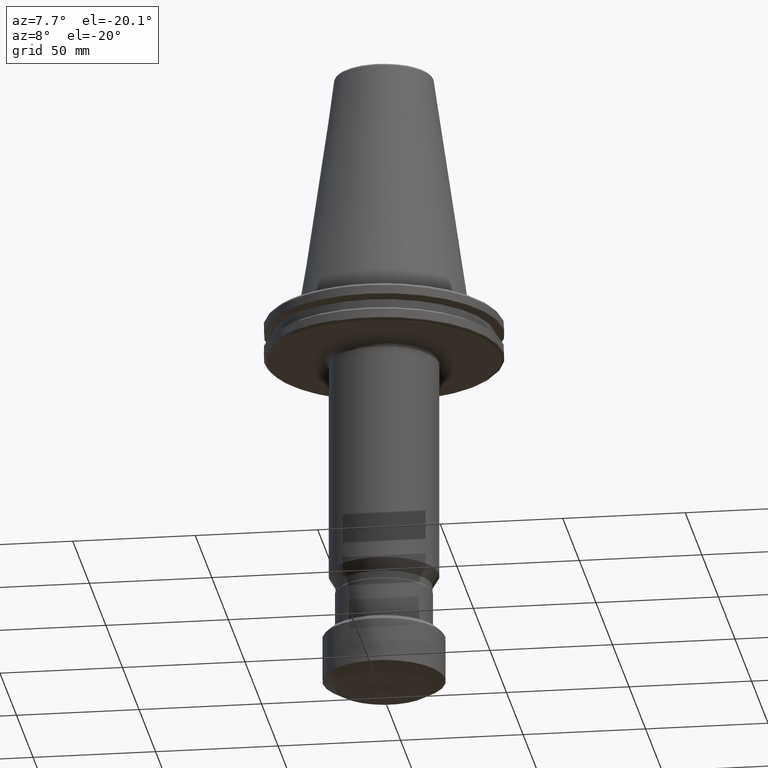
[diagram: clean part render]
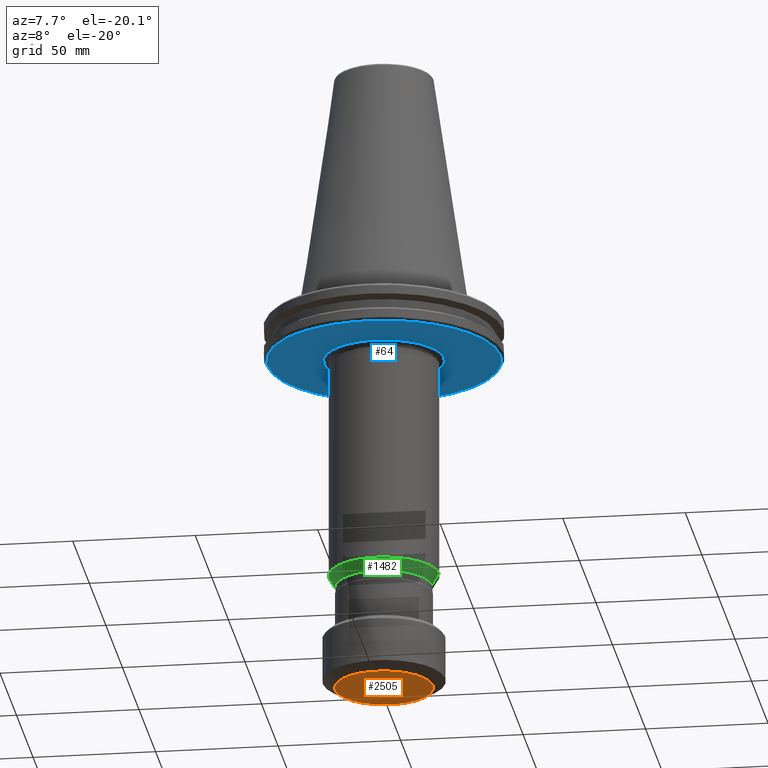
[diagram: same view with three faces highlighted in distinct colors, each labeled with its STEP entity id]
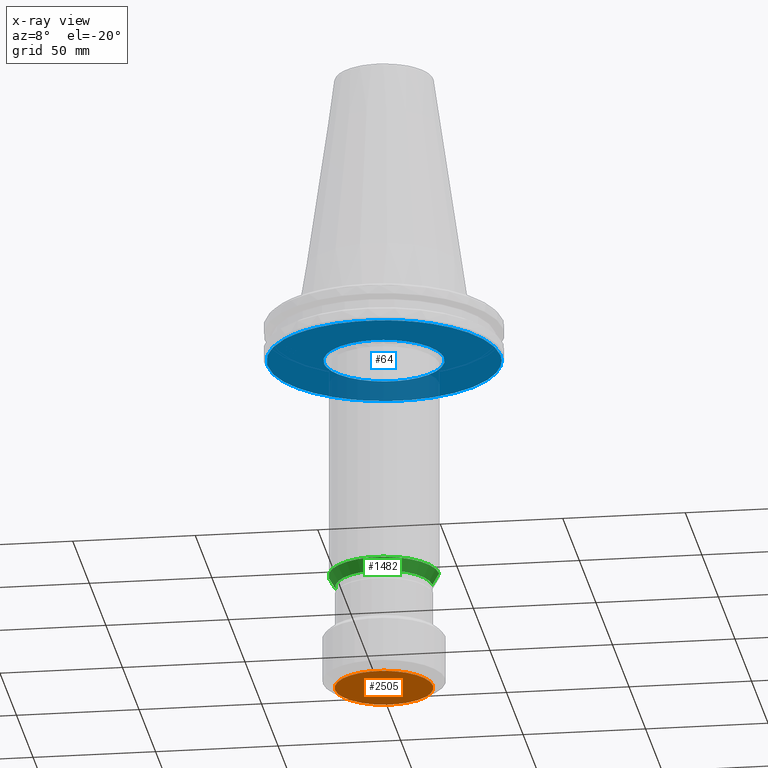
[diagram: x-ray of the same camera — body ghosted, the three highlighted faces saturated]
A machine part, auxiliary view with three faces highlighted in distinct colors.
The next image is the same camera in x-ray (body ghosted, the three faces saturated) — at least one of them is partly hidden behind the body in this view.
Their STEP definitions:

[orange] entity #2505 — the highlighted planar face has unit normal (0, 0, 1).
#380 = CARTESIAN_POINT ( 'NONE',  ( 0.0000000000000000000, 0.0000000000000000000, -160.0000000000000300 ) ) ;
#454 = EDGE_LOOP ( 'NONE', ( #2498, #1276 ) ) ;
#510 = DIRECTION ( 'NONE',  ( 0.0000000000000000000, -0.0000000000000000000, 1.000000000000000000 ) ) ;
#671 = DIRECTION ( 'NONE',  ( 1.000000000000000000, 0.0000000000000000000, 0.0000000000000000000 ) ) ;
#695 = CIRCLE ( 'NONE', #987, 20.00000000000000000 ) ;
#708 = CARTESIAN_POINT ( 'NONE',  ( 0.0000000000000000000, 0.0000000000000000000, -160.0000000000000300 ) ) ;
#764 = CIRCLE ( 'NONE', #2365, 20.00000000000000000 ) ;
#987 = AXIS2_PLACEMENT_3D ( 'NONE', #2160, #510, #2411 ) ;
#1003 = DIRECTION ( 'NONE',  ( 1.000000000000000000, 0.0000000000000000000, -0.0000000000000000000 ) ) ;
#1141 = VERTEX_POINT ( 'NONE', #2947 ) ;
#1276 = ORIENTED_EDGE ( 'NONE', *, *, #2257, .F. ) ;
#1395 = AXIS2_PLACEMENT_3D ( 'NONE', #708, #2581, #1003 ) ;
#1553 = PLANE ( 'NONE',  #1395 ) ;
#1664 = FACE_OUTER_BOUND ( 'NONE', #454, .T. ) ;
#1704 = VERTEX_POINT ( 'NONE', #2370 ) ;
#2160 = CARTESIAN_POINT ( 'NONE',  ( 0.0000000000000000000, 0.0000000000000000000, -160.0000000000000300 ) ) ;
#2257 = EDGE_CURVE ( 'NONE', #1141, #1704, #695, .T. ) ;
#2297 = DIRECTION ( 'NONE',  ( 0.0000000000000000000, -0.0000000000000000000, 1.000000000000000000 ) ) ;
#2365 = AXIS2_PLACEMENT_3D ( 'NONE', #380, #2297, #671 ) ;
#2370 = CARTESIAN_POINT ( 'NONE',  ( 20.00000000000000000, 0.0000000000000000000, -160.0000000000000300 ) ) ;
#2411 = DIRECTION ( 'NONE',  ( 1.000000000000000000, 0.0000000000000000000, 0.0000000000000000000 ) ) ;
#2498 = ORIENTED_EDGE ( 'NONE', *, *, #3369, .F. ) ;
#2505 = ADVANCED_FACE ( 'NONE', ( #1664 ), #1553, .F. ) ;
#2581 = DIRECTION ( 'NONE',  ( 0.0000000000000000000, 0.0000000000000000000, 1.000000000000000000 ) ) ;
#2947 = CARTESIAN_POINT ( 'NONE',  ( -20.00000000000000000, 2.755455298081544800E-015, -160.0000000000000300 ) ) ;
#3369 = EDGE_CURVE ( 'NONE', #1704, #1141, #764, .T. ) ;

[blue] entity #64 — the highlighted planar face has unit normal (0, 0, -1).
#6 = CARTESIAN_POINT ( 'NONE',  ( 14.62150524203252600, 19.66681824928746300, -19.10000000000000500 ) ) ;
#10 = CARTESIAN_POINT ( 'NONE',  ( 47.39900545896377100, 4.849328732845293600, -19.10000000000000900 ) ) ;
#17 = EDGE_LOOP ( 'NONE', ( #1705, #596, #1788, #2606, #249, #1064, #2723 ) ) ;
#25 = CARTESIAN_POINT ( 'NONE',  ( 9.064483389556645700, 22.76153673783532800, -19.10000000000000500 ) ) ;
#38 = CARTESIAN_POINT ( 'NONE',  ( -1.868175757103748100, 24.44890106723857000, -19.10000000000000900 ) ) ;
#44 = CARTESIAN_POINT ( 'NONE',  ( -8.833378299815555200, 22.85222159802591000, -19.10000000000000100 ) ) ;
#54 = CARTESIAN_POINT ( 'NONE',  ( -18.76818551295039600, 15.78819234421531300, -19.10000000000000900 ) ) ;
#64 = ADVANCED_FACE ( 'NONE', ( #2027, #2305 ), #1156, .T. ) ;
#69 = CARTESIAN_POINT ( 'NONE',  ( -22.74156407013993700, 9.114489498750501200, -19.10000000000000500 ) ) ;
#82 = CARTESIAN_POINT ( 'NONE',  ( -24.49999999999999300, 0.0000000000000000000, -19.10000000000000500 ) ) ;
#83 = EDGE_CURVE ( 'NONE', #1495, #3192, #2800, .T. ) ;
#89 = CARTESIAN_POINT ( 'NONE',  ( -41.62449277410392800, 23.06696569431760900, -19.10000000000000500 ) ) ;
#154 = CARTESIAN_POINT ( 'NONE',  ( 47.10692644200636200, -6.726488513066536600, -19.10000000000000100 ) ) ;
#156 = CARTESIAN_POINT ( 'NONE',  ( -20.61909307389091200, -13.23305766389320900, -19.10000000000000500 ) ) ;
#161 = CARTESIAN_POINT ( 'NONE',  ( -20.73005640588600300, -13.05857972663815200, -19.10000000000000500 ) ) ;
#165 = CIRCLE ( 'NONE', #1898, 47.58431457505076200 ) ;
#169 = CARTESIAN_POINT ( 'NONE',  ( 44.88749798163486600, -15.84507372804303700, -19.09999999999999400 ) ) ;
#170 = CARTESIAN_POINT ( 'NONE',  ( -20.89476168683974300, -12.79596617754330100, -19.10000000000000900 ) ) ;
#172 = CARTESIAN_POINT ( 'NONE',  ( -14.62150524204846400, -19.66681824927509600, -19.10000000000000500 ) ) ;
#178 = CARTESIAN_POINT ( 'NONE',  ( 33.33919882936362500, -33.95310552519045900, -19.10000000000000100 ) ) ;
#179 = CARTESIAN_POINT ( 'NONE',  ( -15.78819234419542500, -18.76818551295598800, -19.10000000000000900 ) ) ;
#186 = CARTESIAN_POINT ( 'NONE',  ( 24.25619299493097000, -40.97211381927051100, -19.10000000000000500 ) ) ;
#192 = CARTESIAN_POINT ( 'NONE',  ( 16.43872634124436200, 44.68369591770700600, -19.10000000000000500 ) ) ;
#203 = CARTESIAN_POINT ( 'NONE',  ( -16.72626519779430500, -17.92199336087741200, -19.10000000000000100 ) ) ;
#204 = CARTESIAN_POINT ( 'NONE',  ( -13.54999999999994600, 45.61430141498813400, -19.10000000000000500 ) ) ;
#209 = CARTESIAN_POINT ( 'NONE',  ( 26.63902506832358700, 39.42887053638619200, -19.10000000000000900 ) ) ;
#214 = CARTESIAN_POINT ( 'NONE',  ( 4.296848063490250200, -24.12034322201145300, -19.10000000000000500 ) ) ;
#218 = CARTESIAN_POINT ( 'NONE',  ( 4.135518247072435600, -24.14877268788467300, -19.10000000000000500 ) ) ;
#223 = DIRECTION ( 'NONE',  ( 1.000000000000000000, 0.0000000000000000000, 0.0000000000000000000 ) ) ;
#226 = CARTESIAN_POINT ( 'NONE',  ( 24.50000000000000400, 0.7491812973786200500, -19.10000000000000500 ) ) ;
#228 = CARTESIAN_POINT ( 'NONE',  ( 3.812609326805285600, -24.20283492983470100, -19.10000000000000500 ) ) ;
#249 = ORIENTED_EDGE ( 'NONE', *, *, #1882, .T. ) ;
#253 = CARTESIAN_POINT ( 'NONE',  ( -45.14766936921027000, -15.03384098513202900, -19.10000000000000100 ) ) ;
#258 = CARTESIAN_POINT ( 'NONE',  ( 24.14876603715220300, 4.135554191128385100, -19.10000000000000500 ) ) ;
#261 = CARTESIAN_POINT ( 'NONE',  ( 40.03666779862322000, 25.77557849481444700, -19.10000000000000100 ) ) ;
#272 = CARTESIAN_POINT ( 'NONE',  ( 22.47513741115152200, 9.787963590288521600, -19.10000000000000900 ) ) ;
#274 = CARTESIAN_POINT ( 'NONE',  ( -18.94627407736265900, 43.64984701757386200, -19.10000000000000100 ) ) ;
#277 = CARTESIAN_POINT ( 'NONE',  ( 45.23605185880604300, 14.76391406656611200, -19.10000000000000100 ) ) ;
#289 = CARTESIAN_POINT ( 'NONE',  ( 13.71487232726839700, 20.30203404603447800, -19.10000000000000500 ) ) ;
#292 = CARTESIAN_POINT ( 'NONE',  ( 47.58431457505076200, 0.0000000000000000000, -19.10000000000000500 ) ) ;
#297 = CARTESIAN_POINT ( 'NONE',  ( -13.55000000000003800, -45.61430141498812000, -19.10000000000000500 ) ) ;
#301 = CARTESIAN_POINT ( 'NONE',  ( 7.155728036103918800, 23.45545526423923000, -19.10000000000000900 ) ) ;
#306 = CARTESIAN_POINT ( 'NONE',  ( 47.58431457505076200, 0.0000000000000000000, -19.10000000000000500 ) ) ;
#310 = CARTESIAN_POINT ( 'NONE',  ( -3.812609326798426700, 24.20283492983658700, -19.10000000000000900 ) ) ;
#321 = ORIENTED_EDGE ( 'NONE', *, *, #3335, .T. ) ;
#327 = CARTESIAN_POINT ( 'NONE',  ( -8.970217683888851200, 22.79885562383496000, -19.09999999999999800 ) ) ;
#332 = DIRECTION ( 'NONE',  ( -1.000000000000000000, 0.0000000000000000000, -0.0000000000000000000 ) ) ;
#342 = CARTESIAN_POINT ( 'NONE',  ( -20.09398675715573300, 14.02009449774661400, -19.10000000000000100 ) ) ;
#348 = CARTESIAN_POINT ( 'NONE',  ( -24.49999999999999300, 0.0000000000000000000, -19.10000000000000500 ) ) ;
#353 = CARTESIAN_POINT ( 'NONE',  ( -23.07223958713767700, 8.279712299608917200, -19.10000000000000500 ) ) ;
#355 = CARTESIAN_POINT ( 'NONE',  ( 0.0000000000000000000, 0.0000000000000000000, -19.10000000000000500 ) ) ;
#357 = CARTESIAN_POINT ( 'NONE',  ( 4.433684446098243200, -24.09549817372119700, -19.10000000000000500 ) ) ;
#364 = CARTESIAN_POINT ( 'NONE',  ( 4.412033195618013400, -24.09947046392890300, -19.10000000000000100 ) ) ;
#371 = CARTESIAN_POINT ( 'NONE',  ( 4.365962704015927900, -24.10785951987329800, -19.10000000000000100 ) ) ;
#374 = CARTESIAN_POINT ( 'NONE',  ( -41.50477632034818500, -23.30825446987417500, -19.10000000000000900 ) ) ;
#440 = CARTESIAN_POINT ( 'NONE',  ( 47.05132465888360800, -7.102201038414677600, -19.10000000000000500 ) ) ;
#448 = CARTESIAN_POINT ( 'NONE',  ( 43.30452027736586000, -19.74175216916198000, -19.10000000000000500 ) ) ;
#456 = CARTESIAN_POINT ( 'NONE',  ( -39.34331436813991400, -26.77251847619548300, -19.10000000000000500 ) ) ;
#461 = CARTESIAN_POINT ( 'NONE',  ( 33.04425963287744800, -34.23960624553580300, -19.10000000000000500 ) ) ;
#469 = CARTESIAN_POINT ( 'NONE',  ( -24.09946945840150400, -4.412038630017314700, -19.10000000000000100 ) ) ;
#478 = CARTESIAN_POINT ( 'NONE',  ( 21.33841271917589600, -42.53372818160596600, -19.10000000000000500 ) ) ;
#479 = CARTESIAN_POINT ( 'NONE',  ( -24.10785753257110300, -4.365973444442893500, -19.10000000000000900 ) ) ;
#482 = CARTESIAN_POINT ( 'NONE',  ( -24.12033978579967900, -4.296866634587068700, -19.10000000000000900 ) ) ;
#483 = CARTESIAN_POINT ( 'NONE',  ( 19.37845221087859900, 43.46156447278401900, -19.10000000000000500 ) ) ;
#490 = CARTESIAN_POINT ( 'NONE',  ( -22.90576902360865600, -8.694455448610868900, -19.09999999999999800 ) ) ;
#491 = CARTESIAN_POINT ( 'NONE',  ( 26.83329560689419700, 39.29691769202100500, -19.10000000000000500 ) ) ;
#499 = CARTESIAN_POINT ( 'NONE',  ( -23.02767805297061400, -8.369436977708231100, -19.10000000000000100 ) ) ;
#506 = CARTESIAN_POINT ( 'NONE',  ( -23.25935625704301700, -7.715939430160037900, -19.10000000000000500 ) ) ;
#517 = CARTESIAN_POINT ( 'NONE',  ( -7.155728036119633400, -23.45545526423321500, -19.10000000000000500 ) ) ;
#523 = CARTESIAN_POINT ( 'NONE',  ( -8.279712299622909600, -23.07223958713331800, -19.10000000000000900 ) ) ;
#524 = CARTESIAN_POINT ( 'NONE',  ( -38.39703445869162800, -28.13385998773845700, -19.10000000000000500 ) ) ;
#530 = CARTESIAN_POINT ( 'NONE',  ( -9.064483389556070100, -22.76153673783554500, -19.10000000000000100 ) ) ;
#534 = CARTESIAN_POINT ( 'NONE',  ( -9.687812999444574300, -22.50497981655600200, -19.10000000000000900 ) ) ;
#535 = CARTESIAN_POINT ( 'NONE',  ( -47.51765271232239500, 2.520872981501844000, -19.10000000000000900 ) ) ;
#538 = CARTESIAN_POINT ( 'NONE',  ( -10.34886861752274700, -22.21394415825223900, -19.10000000000000500 ) ) ;
#543 = CARTESIAN_POINT ( 'NONE',  ( -11.64566886237755000, -21.58326654515402500, -19.10000000000000900 ) ) ;
#545 = CARTESIAN_POINT ( 'NONE',  ( -46.34068544062841300, -10.98879899704573200, -19.10000000000000900 ) ) ;
#559 = CARTESIAN_POINT ( 'NONE',  ( 24.10785753257109900, 4.365973444442174100, -19.10000000000000100 ) ) ;
#564 = CARTESIAN_POINT ( 'NONE',  ( 41.76982192488008400, 22.79788105291240500, -19.10000000000000500 ) ) ;
#569 = CIRCLE ( 'NONE', #2525, 47.58431457505076200 ) ;
#575 = CARTESIAN_POINT ( 'NONE',  ( 21.26689598978221700, 12.17692472719658200, -19.10000000000000900 ) ) ;
#576 = CARTESIAN_POINT ( 'NONE',  ( -46.83347022514043800, 8.420015231136341400, -19.10000000000000100 ) ) ;
#577 = CARTESIAN_POINT ( 'NONE',  ( 45.67414891457190200, 13.40663716826947300, -19.10000000000000900 ) ) ;
#585 = CARTESIAN_POINT ( 'NONE',  ( 13.49502826333869600, 20.44839809984123500, -19.10000000000000500 ) ) ;
#596 = ORIENTED_EDGE ( 'NONE', *, *, #2130, .T. ) ;
#598 = CARTESIAN_POINT ( 'NONE',  ( 5.139534656831927800, 23.95634780302113100, -19.10000000000000100 ) ) ;
#611 = CARTESIAN_POINT ( 'NONE',  ( -4.296848063488348600, 24.12034322201196400, -19.10000000000000500 ) ) ;
#623 = CARTESIAN_POINT ( 'NONE',  ( -10.91373581653170900, 21.96245251858093200, -19.10000000000000100 ) ) ;
#626 = CARTESIAN_POINT ( 'NONE',  ( -19.11436798621984700, 43.57650247119016700, -19.10000000000000100 ) ) ;
#631 = CARTESIAN_POINT ( 'NONE',  ( -20.39001067731749100, 13.58309494029645700, -19.10000000000000500 ) ) ;
#646 = CARTESIAN_POINT ( 'NONE',  ( -23.80554885163289200, 5.816286823071203900, -19.10000000000000500 ) ) ;
#652 = CARTESIAN_POINT ( 'NONE',  ( -44.71911495658567000, 16.31098149354083700, -19.10000000000000900 ) ) ;
#665 = CARTESIAN_POINT ( 'NONE',  ( -40.12234574621437800, -25.58256864374900600, -19.09999999999999800 ) ) ;
#707 = B_SPLINE_CURVE_WITH_KNOTS ( 'NONE', 3,
 ( #2857, #3367, #192, #2132, #483, #2391, #762, #2622, #1070, #2870, #1357, #3111, #1628, #3377, #1880, #209, #2145, #491, #2403, #779, #2631, #1081, #2878, #1369, #3118, #1641, #3391, #1894, #261, #2208, #564, #2455, #845, #2692, #1143, #2938, #1433, #3187, #1695, #3442, #1963, #277, #2216, #577, #2466, #855, #2702, #1158, #2951, #1443, #3202, #1715, #10, #1973, #292 ),
 .UNSPECIFIED., .F., .F.,
 ( 4, 1, 1, 1, 1, 1, 2, 2, 1, 1, 1, 1, 2, 2, 1, 1, 1, 2, 2, 2, 1, 1, 1, 1, 2, 2, 1, 1, 1, 1, 2, 2, 1, 1, 1, 1, 1, 2, 2, 4 ),
 ( 0.0000000000000000000, 0.06250000000000030500, 0.09375000000000051300, 0.1093750000000005300, 0.1171875000000005400, 0.1210937500000005600, 0.1230468750000006200, 0.1250000000000007200, 0.1874999999999992000, 0.2187499999999983900, 0.2343749999999980000, 0.2421874999999978400, 0.2460937499999977000, 0.2499999999999975900, 0.3124999999999945600, 0.3437499999999932300, 0.3593749999999926700, 0.3671874999999923400, 0.3749999999999920600, 0.4999999999999874500, 0.5624999999999851200, 0.5937499999999837900, 0.6093749999999832400, 0.6171874999999830100, 0.6210937499999829000, 0.6249999999999827900, 0.6874999999999843500, 0.7187499999999851200, 0.7343749999999854600, 0.7421874999999857900, 0.7460937499999860100, 0.7499999999999862300, 0.8124999999999890100, 0.8437499999999903400, 0.8593749999999911200, 0.8671874999999914500, 0.8710937499999916700, 0.8730468749999917800, 0.8749999999999919000, 1.000000000000000000 ),
 .UNSPECIFIED. ) ;
#714 = CARTESIAN_POINT ( 'NONE',  ( 47.58431457505076200, 0.0000000000000000000, -19.10000000000000500 ) ) ;
#716 = CARTESIAN_POINT ( 'NONE',  ( 24.05883858555435500, -4.628894224763604000, -19.10000000000000500 ) ) ;
#724 = CARTESIAN_POINT ( 'NONE',  ( 47.03440671490892600, -7.213397181111096400, -19.10000000000000500 ) ) ;
#738 = CARTESIAN_POINT ( 'NONE',  ( 42.60054918467681500, -21.20113734480252500, -19.10000000000000500 ) ) ;
#740 = CARTESIAN_POINT ( 'NONE',  ( 24.02568531813985000, -4.799400683774178900, -19.10000000000000500 ) ) ;
#744 = CARTESIAN_POINT ( 'NONE',  ( 23.95634780302242500, -5.139534656828898200, -19.10000000000000100 ) ) ;
#749 = CARTESIAN_POINT ( 'NONE',  ( 31.98833762966669900, -35.25195200179726400, -19.10000000000000900 ) ) ;
#750 = CARTESIAN_POINT ( 'NONE',  ( 22.76153673783523200, -9.064483389556876600, -19.10000000000000500 ) ) ;
#751 = CARTESIAN_POINT ( 'NONE',  ( 22.74156407013894600, -9.114489498752625700, -19.10000000000000500 ) ) ;
#755 = CARTESIAN_POINT ( 'NONE',  ( 20.59353772422665700, -42.89736886372852400, -19.10000000000000100 ) ) ;
#756 = CARTESIAN_POINT ( 'NONE',  ( 22.70288077945825500, -9.210432622245630100, -19.10000000000000500 ) ) ;
#762 = CARTESIAN_POINT ( 'NONE',  ( 20.10319798184759000, 43.12932423443361800, -19.10000000000000500 ) ) ;
#763 = CARTESIAN_POINT ( 'NONE',  ( 13.55000000000001000, -45.61430141498812000, -19.10000000000000500 ) ) ;
#779 = CARTESIAN_POINT ( 'NONE',  ( 29.52749904800645100, 37.35450850858020300, -19.10000000000000100 ) ) ;
#789 = CARTESIAN_POINT ( 'NONE',  ( 20.09398675716017400, -14.02009449773592600, -19.10000000000000500 ) ) ;
#792 = CARTESIAN_POINT ( 'NONE',  ( 19.66681824927851700, -14.62150524204505200, -19.10000000000000900 ) ) ;
#797 = CARTESIAN_POINT ( 'NONE',  ( 18.76818551296053900, -15.78819234419087000, -19.10000000000000500 ) ) ;
#816 = CARTESIAN_POINT ( 'NONE',  ( -47.54579427354998000, -2.153395367257377600, -19.10000000000000100 ) ) ;
#825 = CARTESIAN_POINT ( 'NONE',  ( 20.44839809984040700, -13.49502826333986500, -19.10000000000000900 ) ) ;
#833 = CARTESIAN_POINT ( 'NONE',  ( 20.39001067731888700, -13.58309494029310100, -19.10000000000000500 ) ) ;
#834 = CARTESIAN_POINT ( 'NONE',  ( -44.90937992601374200, -15.73140794602528600, -19.10000000000000500 ) ) ;
#841 = CARTESIAN_POINT ( 'NONE',  ( 24.09549817372121800, 4.433684446098196100, -19.10000000000000500 ) ) ;
#842 = CARTESIAN_POINT ( 'NONE',  ( 20.30203404603168900, -13.71487232727230500, -19.10000000000000900 ) ) ;
#843 = CARTESIAN_POINT ( 'NONE',  ( -15.36949559218750100, 45.07380940898668300, -19.09999999999999800 ) ) ;
#845 = CARTESIAN_POINT ( 'NONE',  ( 42.15563262229598300, 22.07208034063475600, -19.09999999999999800 ) ) ;
#852 = CARTESIAN_POINT ( 'NONE',  ( 20.73005640588222000, 13.05857972664768800, -19.10000000000000100 ) ) ;
#855 = CARTESIAN_POINT ( 'NONE',  ( 46.64842286612403700, 9.428839320933304800, -19.10000000000000500 ) ) ;
#868 = CARTESIAN_POINT ( 'NONE',  ( 12.71382165858722500, 20.95936065423121200, -19.10000000000000900 ) ) ;
#869 = B_SPLINE_CURVE_WITH_KNOTS ( 'NONE', 3,
 ( #297, #2230, #2963, #1459, #3212, #1729 ),
 .UNSPECIFIED., .F., .F.,
 ( 4, 2, 4 ),
 ( 0.0000000000000000000, 0.5000000000000000000, 1.000000000000000000 ),
 .UNSPECIFIED. ) ;
#883 = CARTESIAN_POINT ( 'NONE',  ( 4.628894224764446000, 24.05883858555399600, -19.10000000000000500 ) ) ;
#891 = CARTESIAN_POINT ( 'NONE',  ( -4.412033195617458300, 24.09947046392905200, -19.10000000000000500 ) ) ;
#903 = CARTESIAN_POINT ( 'NONE',  ( -12.79596617756678600, 20.89476168682669400, -19.10000000000000500 ) ) ;
#919 = CARTESIAN_POINT ( 'NONE',  ( -20.47807936052063500, 13.44994003914621000, -19.10000000000000500 ) ) ;
#934 = CARTESIAN_POINT ( 'NONE',  ( -26.99362684486938600, 39.20863816776965600, -19.10000000000000100 ) ) ;
#936 = CARTESIAN_POINT ( 'NONE',  ( -24.02568531813953700, 4.799400683773744600, -19.10000000000000500 ) ) ;
#940 = CARTESIAN_POINT ( 'NONE',  ( -40.26320961462813100, 25.37939330419265400, -19.10000000000000900 ) ) ;
#951 = VERTEX_POINT ( 'NONE', #763 ) ;
#958 = CARTESIAN_POINT ( 'NONE',  ( 12.79596617754590700, -20.89476168683871300, -19.10000000000000500 ) ) ;
#962 = CARTESIAN_POINT ( 'NONE',  ( 12.17692472717388200, -21.26689598979119800, -19.10000000000000500 ) ) ;
#975 = CARTESIAN_POINT ( 'NONE',  ( 10.91373581648399100, -21.96245251860839400, -19.10000000000000100 ) ) ;
#978 = CARTESIAN_POINT ( 'NONE',  ( 13.31817695545159600, -20.56422184315549400, -19.09999999999999800 ) ) ;
#980 = CARTESIAN_POINT ( 'NONE',  ( -47.31854863657513000, 5.184208463527263600, -19.10000000000000500 ) ) ;
#988 = CARTESIAN_POINT ( 'NONE',  ( 13.23305766389402300, -20.61909307389059300, -19.10000000000000100 ) ) ;
#992 = CARTESIAN_POINT ( 'NONE',  ( 13.05857972663971700, -20.73005640588537400, -19.09999999999999800 ) ) ;
#994 = CARTESIAN_POINT ( 'NONE',  ( -43.79157994119678000, 18.61891461360969700, -19.10000000000000500 ) ) ;
#1025 = CARTESIAN_POINT ( 'NONE',  ( 46.47350782602355700, -10.35808886599164300, -19.10000000000000500 ) ) ;
#1031 = CARTESIAN_POINT ( 'NONE',  ( 42.38248318243609700, -21.63374689601684500, -19.10000000000000900 ) ) ;
#1034 = CARTESIAN_POINT ( 'NONE',  ( -21.26689598979296700, -12.17692472716941200, -19.10000000000000500 ) ) ;
#1042 = CARTESIAN_POINT ( 'NONE',  ( 28.74551016930818600, -37.93038276518074500, -19.10000000000000100 ) ) ;
#1044 = CARTESIAN_POINT ( 'NONE',  ( -21.96245251861074600, -10.91373581647802600, -19.09999999999999800 ) ) ;
#1045 = EDGE_CURVE ( 'NONE', #2274, #2690, #1147, .T. ) ;
#1046 = CIRCLE ( 'NONE', #3158, 47.58431457505076200 ) ;
#1051 = CARTESIAN_POINT ( 'NONE',  ( -22.47513741115971400, -9.787963590267818100, -19.10000000000000100 ) ) ;
#1060 = CARTESIAN_POINT ( 'NONE',  ( 20.41528033294924100, -42.98237818865759900, -19.10000000000000500 ) ) ;
#1063 = CARTESIAN_POINT ( 'NONE',  ( -18.51981802162262600, -16.12836169545639500, -19.10000000000000500 ) ) ;
#1064 = ORIENTED_EDGE ( 'NONE', *, *, #1592, .F. ) ;
#1069 = CARTESIAN_POINT ( 'NONE',  ( -19.58108093208547400, -14.82203099768088700, -19.10000000000000100 ) ) ;
#1070 = CARTESIAN_POINT ( 'NONE',  ( 20.27515829117629700, 43.04865088728124800, -19.10000000000000500 ) ) ;
#1071 = CARTESIAN_POINT ( 'NONE',  ( -47.54727111532495300, 1.905664479508390600, -19.10000000000000500 ) ) ;
#1077 = CARTESIAN_POINT ( 'NONE',  ( -20.56422184315517800, -13.31817695545193000, -19.10000000000000500 ) ) ;
#1080 = CARTESIAN_POINT ( 'NONE',  ( 7.715939430150571700, -23.25935625704676100, -19.10000000000000100 ) ) ;
#1081 = CARTESIAN_POINT ( 'NONE',  ( 32.09796523345664800, 35.13085002078541700, -19.10000000000000500 ) ) ;
#1084 = CARTESIAN_POINT ( 'NONE',  ( 6.395101912079400800, -23.67415324658683700, -19.10000000000000100 ) ) ;
#1088 = CARTESIAN_POINT ( 'NONE',  ( 5.239225600075153400, -23.94644880572197100, -19.10000000000000900 ) ) ;
#1095 = EDGE_CURVE ( 'NONE', #1658, #2690, #1046, .T. ) ;
#1105 = CARTESIAN_POINT ( 'NONE',  ( -4.799400683779484000, -24.02568531813774700, -19.10000000000000500 ) ) ;
#1112 = CARTESIAN_POINT ( 'NONE',  ( -5.139534656838799600, -23.95634780301850200, -19.10000000000000500 ) ) ;
#1116 = CARTESIAN_POINT ( 'NONE',  ( -5.816286823089567900, -23.80554885162718300, -19.10000000000001200 ) ) ;
#1117 = CARTESIAN_POINT ( 'NONE',  ( -47.57736471170250100, 1.044448576572247500, -19.10000000000000100 ) ) ;
#1123 = DIRECTION ( 'NONE',  ( 0.0000000000000000000, 0.0000000000000000000, -1.000000000000000000 ) ) ;
#1126 = CARTESIAN_POINT ( 'NONE',  ( 24.49999999999999300, 3.000384657911015100E-015, -19.10000000000000500 ) ) ;
#1128 = CARTESIAN_POINT ( 'NONE',  ( -42.99178721464150500, -20.39579081022644000, -19.10000000000000500 ) ) ;
#1138 = CARTESIAN_POINT ( 'NONE',  ( 23.67415324658564700, 6.395101912082403800, -19.10000000000000900 ) ) ;
#1143 = CARTESIAN_POINT ( 'NONE',  ( 42.27004183452586300, 21.85216361822418200, -19.10000000000000500 ) ) ;
#1147 = B_SPLINE_CURVE_WITH_KNOTS ( 'NONE', 3,
 ( #3326, #2014, #524, #456, #3093, #3347, #665, #1321, #3085, #1946, #374, #2292, #3169, #1687, #3433, #1128, #2927, #1419, #2445, #834, #2677, #253, #2195, #545, #1677, #3423, #1933, #2912, #1404, #3156, #816, #2663, #1117, #1071, #1358, #535, #2900, #2655, #980, #2379, #1921, #2179, #1546, #576, #2392, #2738, #3058, #3316, #652, #2695, #994, #2771, #1930, #1556, #1519, #2536, #2835, #89, #1228, #2288, #2509, #3269, #940, #1619, #2042, #3014, #2760, #2853, #2896, #3416, #1844, #1584, #2995, #1206, #1606, #1178, #1195, #934, #1645, #3294, #3216, #3205, #1442, #2547, #2691, #3112, #2133, #3185, #626, #1812, #274, #1961, #843, #1157 ),
 .UNSPECIFIED., .F., .F.,
 ( 4, 1, 1, 1, 1, 2, 2, 1, 1, 1, 2, 2, 1, 1, 2, 2, 2, 1, 1, 2, 2, 1, 1, 1, 2, 2, 1, 1, 1, 1, 2, 2, 2, 1, 1, 1, 1, 2, 2, 1, 1, 1, 2, 2, 1, 1, 2, 2, 2, 1, 1, 2, 2, 1, 1, 1, 2, 2, 1, 1, 1, 1, 2, 2, 4 ),
 ( 0.0000000000000000000, 0.03125000000000390000, 0.04687500000000589100, 0.05468750000000689000, 0.05859375000000734100, 0.06054687500000745900, 0.06250000000000757700, 0.09375000000000660600, 0.1093750000000062200, 0.1171875000000060900, 0.1210937500000060200, 0.1250000000000059400, 0.1562500000000048300, 0.1718750000000043000, 0.1796875000000040200, 0.1875000000000038000, 0.2500000000000023900, 0.2812500000000016700, 0.2968750000000012800, 0.3046875000000011700, 0.3125000000000009400, 0.3437500000000002800, 0.3593749999999999400, 0.3671874999999997200, 0.3710937499999996700, 0.3749999999999996100, 0.4062499999999990000, 0.4218749999999987200, 0.4296874999999986100, 0.4335937499999985000, 0.4355468749999984500, 0.4374999999999983900, 0.4999999999999982800, 0.5312499999999982200, 0.5468749999999981100, 0.5546874999999980000, 0.5585937499999980000, 0.5605468749999980000, 0.5624999999999980000, 0.5937499999999982200, 0.6093749999999984500, 0.6171874999999985600, 0.6210937499999985600, 0.6249999999999985600, 0.6562499999999987800, 0.6718749999999987800, 0.6796874999999988900, 0.6874999999999990000, 0.7499999999999990000, 0.7812499999999988900, 0.7968749999999991100, 0.8046874999999991100, 0.8124999999999992200, 0.8437499999999997800, 0.8593750000000001100, 0.8671875000000003300, 0.8710937500000003300, 0.8750000000000003300, 0.9062500000000003300, 0.9218750000000001100, 0.9296875000000001100, 0.9335937500000000000, 0.9355468750000001100, 0.9375000000000001100, 1.000000000000000000 ),
 .UNSPECIFIED. ) ;
#1154 = CARTESIAN_POINT ( 'NONE',  ( 20.56422184315779200, 13.31817695544897400, -19.10000000000000900 ) ) ;
#1156 = PLANE ( 'NONE',  #2002 ) ;
#1157 = CARTESIAN_POINT ( 'NONE',  ( -13.54999999999994600, 45.61430141498813400, -19.10000000000000500 ) ) ;
#1158 = CARTESIAN_POINT ( 'NONE',  ( 46.94140912372085900, 7.798446834129023000, -19.10000000000000500 ) ) ;
#1164 = CARTESIAN_POINT ( 'NONE',  ( 10.34886861751474600, 22.21394415825556500, -19.10000000000000100 ) ) ;
#1169 = CARTESIAN_POINT ( 'NONE',  ( 4.506926015179759700, 24.08190607817292100, -19.10000000000000100 ) ) ;
#1178 = CARTESIAN_POINT ( 'NONE',  ( -29.16962769364991100, 37.59601427558866500, -19.10000000000000100 ) ) ;
#1181 = CARTESIAN_POINT ( 'NONE',  ( -5.239225600101385700, 23.94644880571628300, -19.10000000000000900 ) ) ;
#1195 = CARTESIAN_POINT ( 'NONE',  ( -28.19223015311877800, 38.34628826502011400, -19.10000000000000900 ) ) ;
#1197 = CARTESIAN_POINT ( 'NONE',  ( -13.23305766390063100, 20.61909307388679800, -19.10000000000000900 ) ) ;
#1201 = CARTESIAN_POINT ( 'NONE',  ( 8.833378299809250900, -22.85222159802728800, -19.10000000000000900 ) ) ;
#1203 = CARTESIAN_POINT ( 'NONE',  ( 8.694455448607918400, -22.90576902360983900, -19.10000000000000900 ) ) ;
#1206 = CARTESIAN_POINT ( 'NONE',  ( -29.75607469811446000, 37.13363235652707300, -19.10000000000000500 ) ) ;
#1210 = CARTESIAN_POINT ( 'NONE',  ( -21.58326654517060200, 11.64566886234111600, -19.10000000000000900 ) ) ;
#1211 = CARTESIAN_POINT ( 'NONE',  ( 8.369436977702706700, -23.02767805297281000, -19.10000000000000500 ) ) ;
#1213 = EDGE_CURVE ( 'NONE', #2121, #951, #165, .T. ) ;
#1221 = CARTESIAN_POINT ( 'NONE',  ( -24.07272238084387100, 4.555725855369681600, -19.10000000000000500 ) ) ;
#1222 = CARTESIAN_POINT ( 'NONE',  ( -1.498187324693995800, -24.49996756976166500, -19.10000000000000500 ) ) ;
#1225 = CARTESIAN_POINT ( 'NONE',  ( -2.984925040282131500, -24.36362806321210800, -19.10000000000000500 ) ) ;
#1228 = CARTESIAN_POINT ( 'NONE',  ( -41.20373110431084000, 23.80386025135803900, -19.10000000000000900 ) ) ;
#1231 = CARTESIAN_POINT ( 'NONE',  ( -24.49999999999999300, 0.0000000000000000000, -19.10000000000000500 ) ) ;
#1242 = CARTESIAN_POINT ( 'NONE',  ( -4.481113061344662400, -24.08672142406534900, -19.10000000000000500 ) ) ;
#1246 = ORIENTED_EDGE ( 'NONE', *, *, #83, .T. ) ;
#1296 = CARTESIAN_POINT ( 'NONE',  ( -24.14876603715220300, -4.135554191130803600, -19.10000000000000500 ) ) ;
#1311 = CARTESIAN_POINT ( 'NONE',  ( 45.61501663368500200, -13.55419179609409700, -19.10000000000000100 ) ) ;
#1313 = CARTESIAN_POINT ( 'NONE',  ( -24.20282251513409800, -3.812676422380897500, -19.10000000000000100 ) ) ;
#1321 = CARTESIAN_POINT ( 'NONE',  ( -40.18598509482946200, -25.48248467049707200, -19.10000000000000900 ) ) ;
#1330 = CARTESIAN_POINT ( 'NONE',  ( 39.71226124085432500, -26.34633708765989000, -19.10000000000000500 ) ) ;
#1333 = CARTESIAN_POINT ( 'NONE',  ( -24.29975137220505100, -3.165909357531612800, -19.10000000000000500 ) ) ;
#1336 = CARTESIAN_POINT ( 'NONE',  ( -23.67415324658182700, -6.395101912092024500, -19.10000000000000100 ) ) ;
#1344 = CARTESIAN_POINT ( 'NONE',  ( 27.36704069049135800, -38.92761599111898400, -19.10000000000000500 ) ) ;
#1345 = CARTESIAN_POINT ( 'NONE',  ( -23.94644880571910800, -5.239225600082368000, -19.10000000000000500 ) ) ;
#1347 = CARTESIAN_POINT ( 'NONE',  ( -24.09549817372128200, -4.433684446098018500, -19.10000000000000500 ) ) ;
#1352 = CARTESIAN_POINT ( 'NONE',  ( 18.14579602865963200, -44.05578048500440500, -19.10000000000001200 ) ) ;
#1353 = CARTESIAN_POINT ( 'NONE',  ( -9.114489498753053800, -22.74156407013877900, -19.10000000000000500 ) ) ;
#1356 = CARTESIAN_POINT ( 'NONE',  ( -9.210432622246452500, -22.70288077945793100, -19.10000000000000500 ) ) ;
#1357 = CARTESIAN_POINT ( 'NONE',  ( 21.48646288102022700, 42.47584807170687800, -19.10000000000000500 ) ) ;
#1358 = CARTESIAN_POINT ( 'NONE',  ( -47.53007346013648500, 2.274785748779014400, -19.10000000000000900 ) ) ;
#1363 = CARTESIAN_POINT ( 'NONE',  ( -9.354121316492790300, -22.64442185864655200, -19.10000000000000100 ) ) ;
#1368 = CARTESIAN_POINT ( 'NONE',  ( -12.71382165859332300, -20.95936065422866800, -19.10000000000000100 ) ) ;
#1369 = CARTESIAN_POINT ( 'NONE',  ( 32.69070567706415200, 34.57761234898199400, -19.10000000000000500 ) ) ;
#1375 = CARTESIAN_POINT ( 'NONE',  ( -13.44994003914491100, -20.47807936052122100, -19.10000000000000500 ) ) ;
#1381 = CARTESIAN_POINT ( 'NONE',  ( -13.49502826334019400, -20.44839809984007700, -19.10000000000000100 ) ) ;
#1404 = CARTESIAN_POINT ( 'NONE',  ( -47.44611172679827900, -3.632546062404991000, -19.09999999999999800 ) ) ;
#1419 = CARTESIAN_POINT ( 'NONE',  ( -44.05225042109133000, -18.03808220031414000, -19.10000000000000500 ) ) ;
#1431 = CARTESIAN_POINT ( 'NONE',  ( 23.02767805297227400, 8.369436977704019400, -19.10000000000000100 ) ) ;
#1433 = CARTESIAN_POINT ( 'NONE',  ( 43.71947824451901700, 18.86371587509284000, -19.10000000000000500 ) ) ;
#1441 = CARTESIAN_POINT ( 'NONE',  ( 18.51981802164691300, 16.12836169543756500, -19.10000000000001200 ) ) ;
#1442 = CARTESIAN_POINT ( 'NONE',  ( -24.18147765464652500, 40.98216354346036600, -19.10000000000000500 ) ) ;
#1443 = CARTESIAN_POINT ( 'NONE',  ( 47.00406100006816200, 7.408562343374382100, -19.10000000000000100 ) ) ;
#1451 = CARTESIAN_POINT ( 'NONE',  ( 9.354121316490299900, 22.64442185864757900, -19.10000000000000500 ) ) ;
#1459 = CARTESIAN_POINT ( 'NONE',  ( -24.97134317639638800, -40.62632225824804500, -19.10000000000000500 ) ) ;
#1464 = CARTESIAN_POINT ( 'NONE',  ( 2.984925040290548700, 24.36362806320720200, -19.10000000000000500 ) ) ;
#1476 = CARTESIAN_POINT ( 'NONE',  ( -7.715939430185004600, 23.25935625703929000, -19.10000000000000900 ) ) ;
#1486 = CARTESIAN_POINT ( 'NONE',  ( -14.82203099765148500, 19.58108093209854100, -19.10000000000000100 ) ) ;
#1495 = VERTEX_POINT ( 'NONE', #1231 ) ;
#1501 = CARTESIAN_POINT ( 'NONE',  ( -22.50497981656325000, 9.687812999428631500, -19.10000000000000900 ) ) ;
#1515 = CARTESIAN_POINT ( 'NONE',  ( -24.08672091710404900, 4.481115800569359200, -19.10000000000000900 ) ) ;
#1519 = CARTESIAN_POINT ( 'NONE',  ( -43.48387235241212100, 19.32416758564961200, -19.10000000000000500 ) ) ;
#1525 = CARTESIAN_POINT ( 'NONE',  ( -13.55000000000003800, -45.61430141498812000, -19.10000000000000500 ) ) ;
#1546 = CARTESIAN_POINT ( 'NONE',  ( -46.85478944352496500, 8.300562471124081300, -19.10000000000000100 ) ) ;
#1552 = CARTESIAN_POINT ( 'NONE',  ( 23.80554885163388700, -5.816286823072585900, -19.10000000000000500 ) ) ;
#1554 = CARTESIAN_POINT ( 'NONE',  ( 23.45545526424218300, -7.155728036096989300, -19.10000000000000500 ) ) ;
#1556 = CARTESIAN_POINT ( 'NONE',  ( -43.50738066079127000, 19.27117675785837000, -19.10000000000000100 ) ) ;
#1563 = CARTESIAN_POINT ( 'NONE',  ( 23.07223958713844800, -8.279712299609961700, -19.10000000000000500 ) ) ;
#1565 = CARTESIAN_POINT ( 'NONE',  ( 22.64442185864710300, -9.354121316491383500, -19.10000000000000500 ) ) ;
#1573 = CARTESIAN_POINT ( 'NONE',  ( 47.51482365651813900, -3.034128784165765100, -19.10000000000001200 ) ) ;
#1576 = CARTESIAN_POINT ( 'NONE',  ( 22.50497981655703200, -9.687812999441950600, -19.10000000000000500 ) ) ;
#1581 = CARTESIAN_POINT ( 'NONE',  ( 22.21394415825400200, -10.34886861751825600, -19.10000000000000100 ) ) ;
#1584 = CARTESIAN_POINT ( 'NONE',  ( -31.66160600814007300, 35.54634807815936200, -19.10000000000000500 ) ) ;
#1589 = DIRECTION ( 'NONE',  ( -0.0000000000000000000, -0.0000000000000000000, 1.000000000000000000 ) ) ;
#1591 = CARTESIAN_POINT ( 'NONE',  ( 45.38216414505475900, -14.30848230516408600, -19.10000000000000500 ) ) ;
#1592 = EDGE_CURVE ( 'NONE', #2274, #2229, #569, .T. ) ;
#1602 = CARTESIAN_POINT ( 'NONE',  ( 36.10920679683948700, -31.03933632770368000, -19.10000000000000500 ) ) ;
#1606 = CARTESIAN_POINT ( 'NONE',  ( -29.36703163552002500, 37.44204003263730800, -19.09999999999999800 ) ) ;
#1609 = CARTESIAN_POINT ( 'NONE',  ( 27.03399514044641800, -39.15911966686662300, -19.10000000000000500 ) ) ;
#1619 = CARTESIAN_POINT ( 'NONE',  ( -39.46301787733962400, 26.62035680905692200, -19.10000000000000500 ) ) ;
#1620 = CARTESIAN_POINT ( 'NONE',  ( 13.55000000000001000, -45.61430141498812000, -19.10000000000000500 ) ) ;
#1627 = CARTESIAN_POINT ( 'NONE',  ( 24.49999999999999300, 3.000384657911015100E-015, -19.10000000000000500 ) ) ;
#1628 = CARTESIAN_POINT ( 'NONE',  ( 25.05340298708397700, 40.46362946578513900, -19.10000000000000500 ) ) ;
#1640 = CARTESIAN_POINT ( 'NONE',  ( 24.49999999999999300, -1.498718135192927100, -19.10000000000000500 ) ) ;
#1641 = CARTESIAN_POINT ( 'NONE',  ( 34.82602765841514300, 32.53223893882290000, -19.10000000000000900 ) ) ;
#1645 = CARTESIAN_POINT ( 'NONE',  ( -25.55023536425747800, 40.14825000631646600, -19.10000000000000500 ) ) ;
#1647 = CARTESIAN_POINT ( 'NONE',  ( 24.36366050873535700, -2.984749729892087100, -19.10000000000000500 ) ) ;
#1658 = VERTEX_POINT ( 'NONE', #2312 ) ;
#1677 = CARTESIAN_POINT ( 'NONE',  ( -46.90680541812257300, -8.062666715548266100, -19.10000000000000100 ) ) ;
#1685 = CARTESIAN_POINT ( 'NONE',  ( 24.44887269077575500, 1.868329118424776100, -19.10000000000000900 ) ) ;
#1687 = CARTESIAN_POINT ( 'NONE',  ( -42.83533062590130700, -20.72236678758660100, -19.10000000000000500 ) ) ;
#1693 = CARTESIAN_POINT ( 'NONE',  ( 22.85222159802712800, 8.833378299809666600, -19.10000000000000900 ) ) ;
#1695 = CARTESIAN_POINT ( 'NONE',  ( 44.92651047927512300, 15.68644869625626400, -19.10000000000000500 ) ) ;
#1705 = ORIENTED_EDGE ( 'NONE', *, *, #1095, .F. ) ;
#1710 = CARTESIAN_POINT ( 'NONE',  ( 15.78819234417417400, 18.76818551297248000, -19.10000000000000900 ) ) ;
#1715 = CARTESIAN_POINT ( 'NONE',  ( 47.02259631691211400, 7.289981784603581300, -19.10000000000000100 ) ) ;
#1725 = CARTESIAN_POINT ( 'NONE',  ( 9.114489498752307700, 22.74156407013908100, -19.09999999999999800 ) ) ;
#1729 = CARTESIAN_POINT ( 'NONE',  ( -30.00000000000000700, -36.93598507658064300, -19.10000000000000500 ) ) ;
#1734 = CARTESIAN_POINT ( 'NONE',  ( -0.7490936623380259900, 24.50001621512160500, -19.10000000000000500 ) ) ;
#1741 = CARTESIAN_POINT ( 'NONE',  ( -8.694455448618683100, 22.90576902360749400, -19.10000000000000900 ) ) ;
#1754 = CARTESIAN_POINT ( 'NONE',  ( -17.92199336087422200, 16.72626519780567400, -19.10000000000000500 ) ) ;
#1760 = CARTESIAN_POINT ( 'NONE',  ( -22.70288077946019800, 9.210432622241461000, -19.10000000000000500 ) ) ;
#1772 = CARTESIAN_POINT ( 'NONE',  ( -24.49999999999998900, 1.498718135202652400, -19.10000000000000100 ) ) ;
#1784 = CARTESIAN_POINT ( 'NONE',  ( -22.79885562383391600, -8.970217683890759000, -19.10000000000000500 ) ) ;
#1788 = ORIENTED_EDGE ( 'NONE', *, *, #3012, .T. ) ;
#1791 = CARTESIAN_POINT ( 'NONE',  ( -22.81623427014685000, -8.925911138569556900, -19.10000000000000500 ) ) ;
#1803 = CARTESIAN_POINT ( 'NONE',  ( -22.85222159802659900, -8.833378299810984700, -19.10000000000000500 ) ) ;
#1812 = CARTESIAN_POINT ( 'NONE',  ( -19.00318548247783600, 43.62510207827961000, -19.10000000000000500 ) ) ;
#1841 = CARTESIAN_POINT ( 'NONE',  ( 47.18039861107994400, -6.200159950462294800, -19.10000000000000900 ) ) ;
#1844 = CARTESIAN_POINT ( 'NONE',  ( -32.75192744828501600, 34.53355234437722000, -19.10000000000000100 ) ) ;
#1847 = CARTESIAN_POINT ( 'NONE',  ( 45.31099424279038600, -14.53228453995668100, -19.10000000000000500 ) ) ;
#1857 = CARTESIAN_POINT ( 'NONE',  ( 33.74831642302033400, -33.54865932867776500, -19.10000000000000900 ) ) ;
#1869 = CARTESIAN_POINT ( 'NONE',  ( 25.85766165867014300, -39.96557434564389400, -19.10000000000000900 ) ) ;
#1880 = CARTESIAN_POINT ( 'NONE',  ( 26.44261181935021900, 39.56134383753169500, -19.09999999999999800 ) ) ;
#1882 = EDGE_CURVE ( 'NONE', #2121, #2229, #869, .T. ) ;
#1894 = CARTESIAN_POINT ( 'NONE',  ( 38.92522104885117100, 27.40123742074905500, -19.10000000000001200 ) ) ;
#1898 = AXIS2_PLACEMENT_3D ( 'NONE', #3402, #1903, #223 ) ;
#1903 = DIRECTION ( 'NONE',  ( -0.0000000000000000000, -0.0000000000000000000, 1.000000000000000000 ) ) ;
#1909 = VERTEX_POINT ( 'NONE', #306 ) ;
#1910 = CARTESIAN_POINT ( 'NONE',  ( -36.93598507658065000, -30.00000000000000000, -19.10000000000000500 ) ) ;
#1915 = CARTESIAN_POINT ( 'NONE',  ( -24.44887269077575100, -1.868329118435113200, -19.10000000000000500 ) ) ;
#1920 = CARTESIAN_POINT ( 'NONE',  ( -24.50000000000000000, -0.7491812973845257700, -19.10000000000000500 ) ) ;
#1921 = CARTESIAN_POINT ( 'NONE',  ( -46.95781913769241100, 7.702881835401261600, -19.10000000000000500 ) ) ;
#1930 = CARTESIAN_POINT ( 'NONE',  ( -43.55528312424288400, 19.16266601028311800, -19.10000000000000500 ) ) ;
#1932 = CARTESIAN_POINT ( 'NONE',  ( -13.58309494029373000, -20.39001067731826600, -19.10000000000000500 ) ) ;
#1933 = CARTESIAN_POINT ( 'NONE',  ( -47.33918203673612600, -4.868797594623780300, -19.10000000000000500 ) ) ;
#1945 = CARTESIAN_POINT ( 'NONE',  ( 24.20282251513409500, 3.812676422376380300, -19.10000000000000500 ) ) ;
#1946 = CARTESIAN_POINT ( 'NONE',  ( -40.76709873712341900, -24.56122508923620300, -19.10000000000000100 ) ) ;
#1957 = CARTESIAN_POINT ( 'NONE',  ( 22.79885562383442000, 8.970217683889469400, -19.10000000000000100 ) ) ;
#1960 = CARTESIAN_POINT ( 'NONE',  ( -13.71487232727337800, -20.30203404603061300, -19.10000000000000900 ) ) ;
#1961 = CARTESIAN_POINT ( 'NONE',  ( -17.15011055206293400, 44.42683968732080000, -19.10000000000000500 ) ) ;
#1963 = CARTESIAN_POINT ( 'NONE',  ( 45.18544818219137900, 14.91808160775062800, -19.10000000000000100 ) ) ;
#1971 = CARTESIAN_POINT ( 'NONE',  ( 14.02009449772861900, 20.09398675716539600, -19.10000000000000900 ) ) ;
#1973 = CARTESIAN_POINT ( 'NONE',  ( 47.58431457505074700, 2.431850974140331800, -19.10000000000000500 ) ) ;
#1978 = CARTESIAN_POINT ( 'NONE',  ( 8.279712299613939000, 23.07223958713674300, -19.10000000000000500 ) ) ;
#1980 = CARTESIAN_POINT ( 'NONE',  ( -14.02009449773791700, -20.09398675715818400, -19.10000000000000500 ) ) ;
#1993 = CARTESIAN_POINT ( 'NONE',  ( -3.165794336533085800, 24.29977265455217200, -19.10000000000000500 ) ) ;
#2002 = AXIS2_PLACEMENT_3D ( 'NONE', #355, #1123, #332 ) ;
#2003 = CARTESIAN_POINT ( 'NONE',  ( -8.925911138571899900, 22.81623427014648400, -19.10000000000000500 ) ) ;
#2009 = CARTESIAN_POINT ( 'NONE',  ( -19.66681824927091100, 14.62150524206337300, -19.10000000000000500 ) ) ;
#2014 = CARTESIAN_POINT ( 'NONE',  ( -37.53420115869349900, -29.26347665728364300, -19.10000000000000900 ) ) ;
#2018 = CARTESIAN_POINT ( 'NONE',  ( -22.76153673783527500, 9.064483389556953000, -19.10000000000000500 ) ) ;
#2027 = FACE_OUTER_BOUND ( 'NONE', #17, .T. ) ;
#2042 = CARTESIAN_POINT ( 'NONE',  ( -38.46325200468113800, 28.02275388920462600, -19.10000000000000900 ) ) ;
#2068 = CARTESIAN_POINT ( 'NONE',  ( 21.58326654515639500, -11.64566886237156100, -19.10000000000000500 ) ) ;
#2072 = CARTESIAN_POINT ( 'NONE',  ( 20.95936065423002500, -12.71382165858989300, -19.10000000000000900 ) ) ;
#2081 = CARTESIAN_POINT ( 'NONE',  ( 20.47807936052113900, -13.44994003914511900, -19.10000000000000500 ) ) ;
#2091 = CARTESIAN_POINT ( 'NONE',  ( 17.92199336088001600, -16.72626519779171200, -19.10000000000001200 ) ) ;
#2097 = CARTESIAN_POINT ( 'NONE',  ( 47.06829021516595900, -6.989508869535247200, -19.10000000000000500 ) ) ;
#2098 = CARTESIAN_POINT ( 'NONE',  ( 16.12836169545119300, -18.51981802162783800, -19.10000000000000500 ) ) ;
#2103 = CARTESIAN_POINT ( 'NONE',  ( 14.82203099768611500, -19.58108093208026200, -19.10000000000000900 ) ) ;
#2111 = CARTESIAN_POINT ( 'NONE',  ( 44.21619689616145600, -17.66806265518170000, -19.10000000000000500 ) ) ;
#2116 = CARTESIAN_POINT ( 'NONE',  ( 24.08672091710404600, -4.481115800569509300, -19.10000000000000500 ) ) ;
#2121 = VERTEX_POINT ( 'NONE', #1525 ) ;
#2124 = CARTESIAN_POINT ( 'NONE',  ( 33.16242677103952000, -34.12517462234031700, -19.10000000000000500 ) ) ;
#2125 = CARTESIAN_POINT ( 'NONE',  ( 24.08190607817301300, -4.506926015179507400, -19.10000000000000100 ) ) ;
#2128 = CARTESIAN_POINT ( 'NONE',  ( 22.32197853625727600, -42.03222146239996700, -19.10000000000000500 ) ) ;
#2129 = CARTESIAN_POINT ( 'NONE',  ( 24.07272238084396300, -4.555725855369810300, -19.10000000000000500 ) ) ;
#2130 = EDGE_CURVE ( 'NONE', #1658, #1909, #707, .T. ) ;
#2132 = CARTESIAN_POINT ( 'NONE',  ( 18.40578674957977200, 43.88793353371012500, -19.10000000000000900 ) ) ;
#2133 = CARTESIAN_POINT ( 'NONE',  ( -19.66864681413146000, 43.33030693683025400, -19.10000000000000900 ) ) ;
#2140 = CARTESIAN_POINT ( 'NONE',  ( 9.787963590271227000, -22.47513741115835400, -19.10000000000000500 ) ) ;
#2145 = CARTESIAN_POINT ( 'NONE',  ( 26.76977245757856100, 39.34021449236039600, -19.10000000000000500 ) ) ;
#2155 = CARTESIAN_POINT ( 'NONE',  ( 8.970217683890551200, -22.79885562383399700, -19.10000000000000500 ) ) ;
#2164 = CARTESIAN_POINT ( 'NONE',  ( 8.925911138568670500, -22.81623427014720200, -19.10000000000000500 ) ) ;
#2179 = CARTESIAN_POINT ( 'NONE',  ( -46.88642313583513800, 8.121342992170712100, -19.10000000000000900 ) ) ;
#2186 = CARTESIAN_POINT ( 'NONE',  ( 24.49999999999999300, 3.000384657911015100E-015, -19.10000000000000500 ) ) ;
#2188 = CARTESIAN_POINT ( 'NONE',  ( -4.506926015180309400, -24.08190607817270400, -19.10000000000000900 ) ) ;
#2194 = CARTESIAN_POINT ( 'NONE',  ( -4.555725855371394900, -24.07272238084334100, -19.10000000000000500 ) ) ;
#2195 = CARTESIAN_POINT ( 'NONE',  ( -45.84282519669615400, -12.90938794965166600, -19.10000000000000900 ) ) ;
#2205 = CARTESIAN_POINT ( 'NONE',  ( 24.12033978579966800, 4.296866634585821700, -19.10000000000000500 ) ) ;
#2206 = CARTESIAN_POINT ( 'NONE',  ( -4.628894224766344000, -24.05883858555328200, -19.10000000000000900 ) ) ;
#2208 = CARTESIAN_POINT ( 'NONE',  ( 41.21228271001772500, 23.80309394511942500, -19.10000000000000500 ) ) ;
#2215 = CARTESIAN_POINT ( 'NONE',  ( 21.96245251859641100, 10.91373581651425800, -19.10000000000000500 ) ) ;
#2216 = CARTESIAN_POINT ( 'NONE',  ( 45.26182855948181300, 14.68468682494252200, -19.10000000000000100 ) ) ;
#2224 = CARTESIAN_POINT ( 'NONE',  ( 13.58309494029081500, 20.39001067732053600, -19.10000000000000900 ) ) ;
#2229 = VERTEX_POINT ( 'NONE', #2484 ) ;
#2230 = CARTESIAN_POINT ( 'NONE',  ( -16.55021976316358600, -44.72306825938161300, -19.10000000000000100 ) ) ;
#2236 = CARTESIAN_POINT ( 'NONE',  ( 5.816286823077779100, 23.80554885163167700, -19.10000000000000500 ) ) ;
#2237 = CARTESIAN_POINT ( 'NONE',  ( 3.165794336544846700, -24.29977265454896300, -19.10000000000000900 ) ) ;
#2246 = CARTESIAN_POINT ( 'NONE',  ( -4.135518247068769200, 24.14877268788568900, -19.10000000000000500 ) ) ;
#2250 = CARTESIAN_POINT ( 'NONE',  ( 1.868175757119431100, -24.44890106723429600, -19.10000000000000900 ) ) ;
#2256 = CARTESIAN_POINT ( 'NONE',  ( -9.787963590298490500, 22.47513741114266100, -19.10000000000000100 ) ) ;
#2258 = CARTESIAN_POINT ( 'NONE',  ( 0.7490936623469939300, -24.50001621511915300, -19.10000000000000500 ) ) ;
#2272 = CARTESIAN_POINT ( 'NONE',  ( -20.30203404602930200, 13.71487232727803600, -19.10000000000000100 ) ) ;
#2274 = VERTEX_POINT ( 'NONE', #1910 ) ;
#2283 = CARTESIAN_POINT ( 'NONE',  ( -23.45545526424086100, 7.155728036095144500, -19.10000000000000900 ) ) ;
#2288 = CARTESIAN_POINT ( 'NONE',  ( -41.01970147038595400, 24.11775541773290100, -19.10000000000000500 ) ) ;
#2292 = CARTESIAN_POINT ( 'NONE',  ( -42.29725858584544100, -21.80883355815721800, -19.10000000000000500 ) ) ;
#2305 = FACE_BOUND ( 'NONE', #3105, .T. ) ;
#2312 = CARTESIAN_POINT ( 'NONE',  ( 13.54999999999995600, 45.61430141498814100, -19.10000000000000500 ) ) ;
#2345 = DIRECTION ( 'NONE',  ( -0.0000000000000000000, -0.0000000000000000000, 1.000000000000000000 ) ) ;
#2346 = CARTESIAN_POINT ( 'NONE',  ( 47.58431457505075500, -1.215756928372220900, -19.10000000000000500 ) ) ;
#2356 = CARTESIAN_POINT ( 'NONE',  ( 47.03992380506182500, -7.177322297437466000, -19.10000000000000100 ) ) ;
#2366 = CARTESIAN_POINT ( 'NONE',  ( 42.81655896319892900, -20.76531420089842300, -19.10000000000000900 ) ) ;
#2373 = CARTESIAN_POINT ( 'NONE',  ( 32.98419360930449800, -34.29747021916076500, -19.10000000000000900 ) ) ;
#2379 = CARTESIAN_POINT ( 'NONE',  ( -47.09094735394107500, 6.864830031682746600, -19.10000000000000100 ) ) ;
#2387 = CARTESIAN_POINT ( 'NONE',  ( 20.84251516369908300, -42.77734476561926900, -19.09999999999999800 ) ) ;
#2391 = CARTESIAN_POINT ( 'NONE',  ( 19.86206875581078900, 43.24125797508906300, -19.09999999999999800 ) ) ;
#2392 = CARTESIAN_POINT ( 'NONE',  ( -46.82244676818221100, 8.481092150353021000, -19.10000000000000500 ) ) ;
#2403 = CARTESIAN_POINT ( 'NONE',  ( 27.97114087931813500, 38.51712754616836100, -19.10000000000000100 ) ) ;
#2445 = CARTESIAN_POINT ( 'NONE',  ( -44.66341859278546200, -16.42788878449738400, -19.10000000000000500 ) ) ;
#2451 = CARTESIAN_POINT ( 'NONE',  ( 24.09946945840150100, 4.412038630016953200, -19.10000000000000100 ) ) ;
#2455 = CARTESIAN_POINT ( 'NONE',  ( 42.04102447210252800, 22.29053195246903500, -19.10000000000000100 ) ) ;
#2464 = CARTESIAN_POINT ( 'NONE',  ( 20.89476168683346200, 12.79596617755914400, -19.10000000000000100 ) ) ;
#2466 = CARTESIAN_POINT ( 'NONE',  ( 46.18298664308507300, 11.58485019978412100, -19.10000000000000100 ) ) ;
#2474 = CARTESIAN_POINT ( 'NONE',  ( 13.44994003914528600, 20.47807936052106500, -19.09999999999999800 ) ) ;
#2482 = CARTESIAN_POINT ( 'NONE',  ( 4.799400683775804300, 24.02568531813915700, -19.10000000000000500 ) ) ;
#2484 = CARTESIAN_POINT ( 'NONE',  ( -30.00000000000000700, -36.93598507658064300, -19.10000000000000500 ) ) ;
#2494 = CARTESIAN_POINT ( 'NONE',  ( -4.365962704014832800, 24.10785951987360300, -19.10000000000000500 ) ) ;
#2509 = CARTESIAN_POINT ( 'NONE',  ( -40.89619211354413900, 24.32659290939559300, -19.09999999999999800 ) ) ;
#2511 = CARTESIAN_POINT ( 'NONE',  ( -12.17692472720966600, 21.26689598977060300, -19.10000000000000500 ) ) ;
#2523 = CARTESIAN_POINT ( 'NONE',  ( -20.44839809983967500, 13.49502826334158500, -19.09999999999999800 ) ) ;
#2525 = AXIS2_PLACEMENT_3D ( 'NONE', #3081, #1589, #3338 ) ;
#2530 = CARTESIAN_POINT ( 'NONE',  ( -23.95634780302184200, 5.139534656828083700, -19.10000000000000500 ) ) ;
#2536 = CARTESIAN_POINT ( 'NONE',  ( -43.06388169955113900, 20.26603588008566000, -19.10000000000000900 ) ) ;
#2547 = CARTESIAN_POINT ( 'NONE',  ( -23.23964798971194400, 41.53466996812022000, -19.10000000000000900 ) ) ;
#2593 = B_SPLINE_CURVE_WITH_KNOTS ( 'NONE', 3,
 ( #1126, #226, #1685, #3431, #1945, #258, #2205, #559, #2451, #841, #2688, #1138, #2936, #1431, #3184, #1693, #3439, #1957, #272, #2215, #575, #2464, #852, #2699, #1154, #2949, #1441, #3199, #1710, #6, #1971, #289, #2224, #585, #2474, #868, #2707, #1164, #2960, #1451, #3207, #1725, #25, #1978, #301, #2236, #598, #2482, #883, #2720, #1169, #2966, #1464, #3219, #1734, #38, #1993, #310, #2246, #611, #2494, #891, #2731, #1181, #2973, #1476, #3232, #1741, #44, #2003, #327, #2256, #623, #2511, #903, #2740, #1197, #2989, #1486, #3243, #1754, #54, #2009, #342, #2272, #631, #2523, #919, #2753, #1210, #3003, #1501, #3251, #1760, #69, #2018, #353, #2283, #646, #2530, #936, #2763, #1221, #3011, #1515, #3265, #1772, #82 ),
 .UNSPECIFIED., .F., .F.,
 ( 4, 1, 1, 1, 1, 1, 2, 2, 1, 1, 1, 1, 2, 2, 1, 1, 1, 2, 2, 2, 1, 1, 1, 1, 2, 2, 1, 1, 1, 1, 2, 2, 1, 1, 1, 1, 1, 2, 2, 2, 1, 1, 1, 1, 1, 2, 2, 1, 1, 1, 1, 2, 2, 1, 1, 1, 2, 2, 2, 1, 1, 1, 1, 2, 2, 1, 1, 1, 1, 2, 2, 1, 1, 1, 1, 1, 2, 2, 4 ),
 ( 0.0000000000000000000, 0.03124999999999946600, 0.04687499999999920200, 0.05468749999999907700, 0.05859374999999901500, 0.06054687499999900800, 0.06152343749999902200, 0.06249999999999904200, 0.09374999999999850100, 0.1093749999999982700, 0.1171874999999981300, 0.1210937499999980400, 0.1230468749999979700, 0.1249999999999979200, 0.1562499999999977200, 0.1718749999999976400, 0.1796874999999976400, 0.1835937499999976100, 0.1874999999999975600, 0.2499999999999966700, 0.2812499999999961700, 0.2968749999999959500, 0.3046874999999957300, 0.3085937499999956100, 0.3105468749999955000, 0.3124999999999954500, 0.3437499999999945000, 0.3593749999999940000, 0.3671874999999937300, 0.3710937499999936200, 0.3730468749999935100, 0.3749999999999934500, 0.4062499999999919500, 0.4218749999999912300, 0.4296874999999909000, 0.4335937499999906700, 0.4355468749999906200, 0.4365234374999905600, 0.4374999999999904500, 0.4999999999999879500, 0.5312499999999866800, 0.5468749999999861200, 0.5546874999999857900, 0.5585937499999855700, 0.5605468749999855700, 0.5615234374999855700, 0.5624999999999854600, 0.5937499999999847900, 0.6093749999999843500, 0.6171874999999842300, 0.6210937499999841200, 0.6230468749999842300, 0.6249999999999843500, 0.6562499999999854600, 0.6718749999999861200, 0.6796874999999863400, 0.6835937499999865700, 0.6874999999999866800, 0.7499999999999886800, 0.7812499999999897900, 0.7968749999999902300, 0.8046874999999905600, 0.8085937499999906700, 0.8105468749999906700, 0.8124999999999906700, 0.8437499999999911200, 0.8593749999999913400, 0.8671874999999913400, 0.8710937499999914500, 0.8730468749999915600, 0.8749999999999915600, 0.9062499999999935600, 0.9218749999999946700, 0.9296874999999952300, 0.9335937499999954500, 0.9355468749999955600, 0.9365234374999956700, 0.9374999999999957800, 1.000000000000000000 ),
 .UNSPECIFIED. ) ;
#2594 = CARTESIAN_POINT ( 'NONE',  ( 46.83576360697861700, -8.501588316240335200, -19.10000000000000100 ) ) ;
#2602 = CARTESIAN_POINT ( 'NONE',  ( 42.45501299876833200, -21.49105359667889200, -19.10000000000001200 ) ) ;
#2606 = ORIENTED_EDGE ( 'NONE', *, *, #1213, .F. ) ;
#2614 = CARTESIAN_POINT ( 'NONE',  ( 30.53220719706269300, -36.53788278299757100, -19.10000000000000900 ) ) ;
#2619 = CARTESIAN_POINT ( 'NONE',  ( 20.48661267979546700, -42.94842543565445700, -19.10000000000000100 ) ) ;
#2622 = CARTESIAN_POINT ( 'NONE',  ( 20.20639356877136100, 43.08097109733670000, -19.10000000000000500 ) ) ;
#2631 = CARTESIAN_POINT ( 'NONE',  ( 31.25572989637844000, 35.89007667595657800, -19.10000000000000500 ) ) ;
#2655 = CARTESIAN_POINT ( 'NONE',  ( -47.44736947906721300, 3.735930615305174600, -19.10000000000000500 ) ) ;
#2663 = CARTESIAN_POINT ( 'NONE',  ( -47.59741484154227500, -0.6777149945187424000, -19.10000000000000500 ) ) ;
#2677 = CARTESIAN_POINT ( 'NONE',  ( -45.06980572967433600, -15.26566562127072200, -19.10000000000000500 ) ) ;
#2688 = CARTESIAN_POINT ( 'NONE',  ( 23.94644880572129600, 5.239225600076872000, -19.10000000000000900 ) ) ;
#2690 = VERTEX_POINT ( 'NONE', #204 ) ;
#2691 = CARTESIAN_POINT ( 'NONE',  ( -21.96363841711322400, 42.23173747253388700, -19.10000000000000900 ) ) ;
#2692 = CARTESIAN_POINT ( 'NONE',  ( 42.23167771955790100, 21.92622009206238300, -19.10000000000000100 ) ) ;
#2695 = CARTESIAN_POINT ( 'NONE',  ( -44.11237557108120900, 17.85393059891838200, -19.10000000000000500 ) ) ;
#2699 = CARTESIAN_POINT ( 'NONE',  ( 20.61909307388894400, 13.23305766389821900, -19.10000000000000900 ) ) ;
#2702 = CARTESIAN_POINT ( 'NONE',  ( 46.84908902925357000, 8.343185694270086800, -19.10000000000000100 ) ) ;
#2707 = CARTESIAN_POINT ( 'NONE',  ( 11.64566886236688100, 21.58326654515846600, -19.10000000000000500 ) ) ;
#2720 = CARTESIAN_POINT ( 'NONE',  ( 4.555725855370301500, 24.07272238084376400, -19.10000000000000900 ) ) ;
#2723 = ORIENTED_EDGE ( 'NONE', *, *, #1045, .T. ) ;
#2731 = CARTESIAN_POINT ( 'NONE',  ( -4.433684446097425200, 24.09549817372137400, -19.10000000000000500 ) ) ;
#2738 = CARTESIAN_POINT ( 'NONE',  ( -46.47129717731547800, 10.40616371175268600, -19.10000000000000500 ) ) ;
#2740 = CARTESIAN_POINT ( 'NONE',  ( -13.05857972665228700, 20.73005640587815200, -19.10000000000000500 ) ) ;
#2753 = CARTESIAN_POINT ( 'NONE',  ( -20.95936065423813600, 12.71382165857249700, -19.10000000000000100 ) ) ;
#2760 = CARTESIAN_POINT ( 'NONE',  ( -37.72233470566379100, 29.00609245873955200, -19.10000000000000500 ) ) ;
#2763 = CARTESIAN_POINT ( 'NONE',  ( -24.05883858555420200, 4.628894224763378400, -19.10000000000000500 ) ) ;
#2765 = B_SPLINE_CURVE_WITH_KNOTS ( 'NONE', 3,
 ( #714, #2346, #1573, #3329, #1841, #154, #2097, #440, #2356, #724, #2594, #1025, #2837, #1311, #3082, #1591, #3341, #1847, #169, #2111, #448, #2366, #738, #2602, #1031, #2847, #1330, #3087, #1602, #3353, #1857, #178, #2124, #461, #2373, #749, #2614, #1042, #2855, #1344, #3097, #1609, #3364, #1869, #186, #2128, #478, #2387, #755, #2619, #1060, #2865, #1352, #3106, #1620 ),
 .UNSPECIFIED., .F., .F.,
 ( 4, 1, 1, 1, 1, 1, 2, 2, 1, 1, 1, 1, 2, 2, 1, 1, 1, 2, 2, 2, 1, 1, 1, 1, 2, 2, 1, 1, 1, 1, 2, 2, 1, 1, 1, 1, 1, 2, 2, 4 ),
 ( 0.0000000000000000000, 0.06249999999999794600, 0.09374999999999694700, 0.1093749999999964500, 0.1171874999999962100, 0.1210937499999961000, 0.1230468749999960700, 0.1249999999999960300, 0.1874999999999956700, 0.2187499999999955300, 0.2343749999999953900, 0.2421874999999953400, 0.2460937499999952300, 0.2499999999999951200, 0.3124999999999936700, 0.3437499999999928400, 0.3593749999999925100, 0.3671874999999922800, 0.3749999999999920100, 0.4999999999999863400, 0.5624999999999833500, 0.5937499999999820100, 0.6093749999999813500, 0.6171874999999810200, 0.6210937499999811300, 0.6249999999999812400, 0.6874999999999850100, 0.7187499999999870100, 0.7343749999999881200, 0.7421874999999884500, 0.7460937499999886800, 0.7499999999999889000, 0.8124999999999913400, 0.8437499999999926700, 0.8593749999999932300, 0.8671874999999934500, 0.8710937499999936700, 0.8730468749999937800, 0.8749999999999937800, 1.000000000000000000 ),
 .UNSPECIFIED. ) ;
#2771 = CARTESIAN_POINT ( 'NONE',  ( -43.62682564197152100, 18.99978398645598400, -19.10000000000000500 ) ) ;
#2800 = B_SPLINE_CURVE_WITH_KNOTS ( 'NONE', 3,
 ( #348, #1920, #1915, #1333, #1313, #1296, #482, #479, #469, #1347, #1345, #1336, #506, #499, #490, #1803, #1791, #1784, #1051, #1044, #1034, #170, #161, #156, #1077, #1069, #1063, #203, #179, #172, #1980, #1960, #1932, #1381, #1375, #1368, #543, #538, #534, #1363, #1356, #1353, #530, #523, #517, #1116, #1112, #1105, #2206, #2194, #2188, #1242, #1225, #1222, #2258, #2250, #2237, #228, #218, #214, #371, #364, #357, #1088, #1084, #1080, #1211, #1203, #1201, #2164, #2155, #2140, #975, #962, #958, #992, #988, #978, #2103, #2098, #2091, #797, #792, #789, #842, #833, #825, #2081, #2072, #2068, #1581, #1576, #1565, #756, #751, #750, #1563, #1554, #1552, #744, #740, #716, #2129, #2125, #2116, #1647, #1640, #1627 ),
 .UNSPECIFIED., .F., .F.,
 ( 4, 1, 1, 1, 1, 1, 2, 2, 1, 1, 1, 1, 2, 2, 1, 1, 1, 2, 2, 2, 1, 1, 1, 1, 2, 2, 1, 1, 1, 1, 2, 2, 1, 1, 1, 1, 1, 2, 2, 2, 1, 1, 1, 1, 1, 2, 2, 1, 1, 1, 1, 2, 2, 1, 1, 1, 2, 2, 2, 1, 1, 1, 1, 2, 2, 1, 1, 1, 1, 2, 2, 1, 1, 1, 1, 1, 2, 2, 4 ),
 ( 0.0000000000000000000, 0.03125000000000088100, 0.04687500000000131800, 0.05468750000000154700, 0.05859375000000165100, 0.06054687500000173500, 0.06152343750000177600, 0.06250000000000181800, 0.09375000000000365000, 0.1093750000000045400, 0.1171875000000049500, 0.1210937500000051900, 0.1230468750000053200, 0.1250000000000054400, 0.1562500000000060800, 0.1718750000000063800, 0.1796875000000064900, 0.1835937500000065500, 0.1875000000000066100, 0.2500000000000068300, 0.2812500000000069900, 0.2968750000000071100, 0.3046875000000072200, 0.3085937500000072700, 0.3105468750000072700, 0.3125000000000072700, 0.3437500000000076100, 0.3593750000000077700, 0.3671875000000078300, 0.3710937500000078300, 0.3730468750000078800, 0.3750000000000078800, 0.4062500000000084900, 0.4218750000000087700, 0.4296875000000088800, 0.4335937500000089400, 0.4355468750000089400, 0.4365234375000089400, 0.4375000000000088800, 0.5000000000000071100, 0.5312500000000062200, 0.5468750000000057700, 0.5546875000000055500, 0.5585937500000054400, 0.5605468750000053300, 0.5615234375000054400, 0.5625000000000054400, 0.5937500000000041100, 0.6093750000000034400, 0.6171875000000031100, 0.6210937500000028900, 0.6230468750000027800, 0.6250000000000027800, 0.6562500000000013300, 0.6718750000000006700, 0.6796875000000003300, 0.6835937500000002200, 0.6875000000000001100, 0.7499999999999983300, 0.7812499999999975600, 0.7968749999999971100, 0.8046874999999968900, 0.8085937499999967800, 0.8105468749999967800, 0.8124999999999966700, 0.8437499999999968900, 0.8593749999999970000, 0.8671874999999970000, 0.8710937499999970000, 0.8730468749999971100, 0.8749999999999971100, 0.9062499999999976700, 0.9218749999999980000, 0.9296874999999981100, 0.9335937499999982200, 0.9355468749999983300, 0.9365234374999983300, 0.9374999999999983300, 1.000000000000000000 ),
 .UNSPECIFIED. ) ;
#2835 = CARTESIAN_POINT ( 'NONE',  ( -42.43145287623053000, 21.57528657157387300, -19.10000000000000900 ) ) ;
#2837 = CARTESIAN_POINT ( 'NONE',  ( 45.92256546690902000, -12.49385015577064800, -19.10000000000000500 ) ) ;
#2847 = CARTESIAN_POINT ( 'NONE',  ( 41.10236839384869300, -24.12040806564775200, -19.10000000000000500 ) ) ;
#2853 = CARTESIAN_POINT ( 'NONE',  ( -37.57277125777323300, 29.19957678201551600, -19.10000000000000500 ) ) ;
#2855 = CARTESIAN_POINT ( 'NONE',  ( 27.83019210800183500, -38.59969460730139400, -19.10000000000000500 ) ) ;
#2857 = CARTESIAN_POINT ( 'NONE',  ( 13.54999999999995600, 45.61430141498814100, -19.10000000000000500 ) ) ;
#2865 = CARTESIAN_POINT ( 'NONE',  ( 20.37821948653995100, -42.99996010883689500, -19.10000000000000100 ) ) ;
#2870 = CARTESIAN_POINT ( 'NONE',  ( 20.30816862367873900, 43.03308960634989700, -19.10000000000000500 ) ) ;
#2878 = CARTESIAN_POINT ( 'NONE',  ( 32.45423464496709400, 34.79967915309934800, -19.10000000000000100 ) ) ;
#2896 = CARTESIAN_POINT ( 'NONE',  ( -36.19195205108634600, 30.95738241488313100, -19.10000000000000500 ) ) ;
#2900 = CARTESIAN_POINT ( 'NONE',  ( -47.51085212533912000, 2.645849691379929400, -19.10000000000000100 ) ) ;
#2912 = CARTESIAN_POINT ( 'NONE',  ( -47.40564946809689700, -4.127351685709132100, -19.10000000000000500 ) ) ;
#2927 = CARTESIAN_POINT ( 'NONE',  ( -43.46452045536236900, -19.39265620138312200, -19.10000000000000900 ) ) ;
#2936 = CARTESIAN_POINT ( 'NONE',  ( 23.25935625704586900, 7.715939430152819700, -19.10000000000000500 ) ) ;
#2938 = CARTESIAN_POINT ( 'NONE',  ( 42.90142996041213800, 20.62574051033067600, -19.10000000000000900 ) ) ;
#2949 = CARTESIAN_POINT ( 'NONE',  ( 19.58108093204368700, 14.82203099772814000, -19.10000000000000900 ) ) ;
#2951 = CARTESIAN_POINT ( 'NONE',  ( 46.98556592418014300, 7.525599392356128600, -19.10000000000000100 ) ) ;
#2957 = DIRECTION ( 'NONE',  ( 1.000000000000000000, 0.0000000000000000000, 0.0000000000000000000 ) ) ;
#2960 = CARTESIAN_POINT ( 'NONE',  ( 9.687812999439914900, 22.50497981655793800, -19.10000000000000100 ) ) ;
#2963 = CARTESIAN_POINT ( 'NONE',  ( -19.43491397807991200, -43.54702447241295000, -19.10000000000000500 ) ) ;
#2966 = CARTESIAN_POINT ( 'NONE',  ( 4.481113061344538900, 24.08672142406542700, -19.10000000000000100 ) ) ;
#2973 = CARTESIAN_POINT ( 'NONE',  ( -6.395101912125302800, 23.67415324657687800, -19.10000000000000100 ) ) ;
#2989 = CARTESIAN_POINT ( 'NONE',  ( -13.31817695545376300, 20.56422184315437100, -19.10000000000000900 ) ) ;
#2995 = CARTESIAN_POINT ( 'NONE',  ( -30.33579890462415900, 36.66664220708914700, -19.10000000000000100 ) ) ;
#3003 = CARTESIAN_POINT ( 'NONE',  ( -22.21394415826466700, 10.34886861749542500, -19.10000000000001200 ) ) ;
#3011 = CARTESIAN_POINT ( 'NONE',  ( -24.08190607817297400, 4.506926015179446100, -19.10000000000000100 ) ) ;
#3012 = EDGE_CURVE ( 'NONE', #1909, #951, #2765, .T. ) ;
#3014 = CARTESIAN_POINT ( 'NONE',  ( -38.02059330657994000, 28.61405399308351200, -19.10000000000000500 ) ) ;
#3058 = CARTESIAN_POINT ( 'NONE',  ( -46.02040231049004900, 12.24696722946500500, -19.10000000000000500 ) ) ;
#3081 = CARTESIAN_POINT ( 'NONE',  ( 0.0000000000000000000, 0.0000000000000000000, -19.10000000000000500 ) ) ;
#3082 = CARTESIAN_POINT ( 'NONE',  ( 45.45322280365635200, -14.08247786511431900, -19.10000000000000900 ) ) ;
#3085 = CARTESIAN_POINT ( 'NONE',  ( -40.21699599931135800, -25.43351805060556400, -19.10000000000000900 ) ) ;
#3087 = CARTESIAN_POINT ( 'NONE',  ( 37.35106965259781500, -29.51098510212085200, -19.10000000000000500 ) ) ;
#3093 = CARTESIAN_POINT ( 'NONE',  ( -39.80136458772669500, -26.08098387115559500, -19.10000000000001200 ) ) ;
#3097 = CARTESIAN_POINT ( 'NONE',  ( 27.16737028580317300, -39.06671061191735100, -19.09999999999999800 ) ) ;
#3105 = EDGE_LOOP ( 'NONE', ( #1246, #321 ) ) ;
#3106 = CARTESIAN_POINT ( 'NONE',  ( 15.88117119190471400, -44.92181312358727800, -19.10000000000000900 ) ) ;
#3111 = CARTESIAN_POINT ( 'NONE',  ( 23.16294830552150000, 41.59993702408268500, -19.10000000000000500 ) ) ;
#3112 = CARTESIAN_POINT ( 'NONE',  ( -20.43954638188099400, 42.97566936953406700, -19.10000000000000500 ) ) ;
#3115 = CARTESIAN_POINT ( 'NONE',  ( 0.0000000000000000000, 0.0000000000000000000, -19.10000000000000500 ) ) ;
#3118 = CARTESIAN_POINT ( 'NONE',  ( 32.80683798250771600, 34.46745228559668600, -19.10000000000000900 ) ) ;
#3156 = CARTESIAN_POINT ( 'NONE',  ( -47.46455135935127600, -3.382873549509768800, -19.10000000000000100 ) ) ;
#3158 = AXIS2_PLACEMENT_3D ( 'NONE', #3115, #2345, #2957 ) ;
#3169 = CARTESIAN_POINT ( 'NONE',  ( -42.67646432319446600, -21.04971763835008500, -19.10000000000000500 ) ) ;
#3184 = CARTESIAN_POINT ( 'NONE',  ( 22.90576902360956200, 8.694455448608621900, -19.10000000000000500 ) ) ;
#3185 = CARTESIAN_POINT ( 'NONE',  ( -19.28098364272332400, 43.50329362517733500, -19.10000000000000900 ) ) ;
#3187 = CARTESIAN_POINT ( 'NONE',  ( 44.54555233077839900, 16.75446385750373300, -19.09999999999999800 ) ) ;
#3192 = VERTEX_POINT ( 'NONE', #2186 ) ;
#3199 = CARTESIAN_POINT ( 'NONE',  ( 16.72626519778216900, 17.92199336088682700, -19.10000000000000100 ) ) ;
#3202 = CARTESIAN_POINT ( 'NONE',  ( 47.01629565795664700, 7.330514881591199100, -19.10000000000000100 ) ) ;
#3205 = CARTESIAN_POINT ( 'NONE',  ( -24.28919228007484000, 40.91842199131193800, -19.10000000000000900 ) ) ;
#3207 = CARTESIAN_POINT ( 'NONE',  ( 9.210432622245001300, 22.70288077945853200, -19.10000000000000900 ) ) ;
#3212 = CARTESIAN_POINT ( 'NONE',  ( -27.57030031731700600, -38.90942616199809800, -19.10000000000000500 ) ) ;
#3216 = CARTESIAN_POINT ( 'NONE',  ( -24.50075070043855500, 40.79210399628075800, -19.10000000000000500 ) ) ;
#3219 = CARTESIAN_POINT ( 'NONE',  ( 1.498187324676071300, 24.49996756975675900, -19.09999999999999800 ) ) ;
#3232 = CARTESIAN_POINT ( 'NONE',  ( -8.369436977722795500, 23.02767805296844400, -19.10000000000000900 ) ) ;
#3243 = CARTESIAN_POINT ( 'NONE',  ( -16.12836169546278600, 18.51981802159989200, -19.10000000000000500 ) ) ;
#3251 = CARTESIAN_POINT ( 'NONE',  ( -22.64442185865043600, 9.354121316484260300, -19.10000000000000900 ) ) ;
#3265 = CARTESIAN_POINT ( 'NONE',  ( -24.36366050873535000, 2.984749729901817500, -19.10000000000000500 ) ) ;
#3269 = CARTESIAN_POINT ( 'NONE',  ( -40.83497819795653800, 24.42921624317559200, -19.10000000000000500 ) ) ;
#3294 = CARTESIAN_POINT ( 'NONE',  ( -24.81728438537126600, 40.60144016359124200, -19.10000000000000100 ) ) ;
#3316 = CARTESIAN_POINT ( 'NONE',  ( -45.17943121685046000, 14.96620041579737900, -19.10000000000000100 ) ) ;
#3326 = CARTESIAN_POINT ( 'NONE',  ( -36.93598507658065000, -30.00000000000000000, -19.10000000000000500 ) ) ;
#3329 = CARTESIAN_POINT ( 'NONE',  ( 47.31214181079801100, -5.146351426586515600, -19.10000000000000500 ) ) ;
#3335 = EDGE_CURVE ( 'NONE', #3192, #1495, #2593, .T. ) ;
#3338 = DIRECTION ( 'NONE',  ( 1.000000000000000000, 0.0000000000000000000, 0.0000000000000000000 ) ) ;
#3341 = CARTESIAN_POINT ( 'NONE',  ( 45.33440982915765700, -14.45906218180956600, -19.09999999999999800 ) ) ;
#3347 = CARTESIAN_POINT ( 'NONE',  ( -40.02661726373572300, -25.73250060631855300, -19.10000000000000500 ) ) ;
#3353 = CARTESIAN_POINT ( 'NONE',  ( 34.55314944060215500, -32.72796038966696800, -19.10000000000000900 ) ) ;
#3364 = CARTESIAN_POINT ( 'NONE',  ( 26.96538805818474300, -39.20638976705374300, -19.10000000000000100 ) ) ;
#3367 = CARTESIAN_POINT ( 'NONE',  ( 14.71542401569212200, 45.26810526766667700, -19.10000000000000500 ) ) ;
#3377 = CARTESIAN_POINT ( 'NONE',  ( 25.98226908277629800, 39.86687285261906800, -19.10000000000000500 ) ) ;
#3391 = CARTESIAN_POINT ( 'NONE',  ( 36.56395844834761300, 30.56583245040344800, -19.10000000000000500 ) ) ;
#3402 = CARTESIAN_POINT ( 'NONE',  ( 0.0000000000000000000, 0.0000000000000000000, -19.10000000000000500 ) ) ;
#3416 = CARTESIAN_POINT ( 'NONE',  ( -34.87112413046417500, 32.43790271245178800, -19.10000000000000500 ) ) ;
#3423 = CARTESIAN_POINT ( 'NONE',  ( -47.14367306040028200, -6.593500366467049300, -19.10000000000000900 ) ) ;
#3431 = CARTESIAN_POINT ( 'NONE',  ( 24.29975137220505100, 3.165909357523860800, -19.10000000000000100 ) ) ;
#3433 = CARTESIAN_POINT ( 'NONE',  ( -42.94043028506779800, -20.50368500784196600, -19.10000000000000500 ) ) ;
#3439 = CARTESIAN_POINT ( 'NONE',  ( 22.81623427014711300, 8.925911138568878300, -19.10000000000000500 ) ) ;
#3442 = CARTESIAN_POINT ( 'NONE',  ( 45.10896982986523800, 15.14909382751930500, -19.10000000000000100 ) ) ;

[green] entity #1482 — the highlighted conical surface has half-angle 30 deg.
#27 = VERTEX_POINT ( 'NONE', #1293 ) ;
#117 = VERTEX_POINT ( 'NONE', #636 ) ;
#124 = DIRECTION ( 'NONE',  ( 0.4999999999999985000, 0.0000000000000000000, 0.8660254037844394800 ) ) ;
#375 = VECTOR ( 'NONE', #124, 1000.000000000000000 ) ;
#394 = CARTESIAN_POINT ( 'NONE',  ( 0.0000000000000000000, 0.0000000000000000000, -111.8079588950837000 ) ) ;
#473 = CIRCLE ( 'NONE', #1815, 19.74999999999999600 ) ;
#516 = VECTOR ( 'NONE', #602, 1000.000000000000000 ) ;
#565 = CARTESIAN_POINT ( 'NONE',  ( 0.0000000000000000000, 0.0000000000000000000, -116.5710986158981400 ) ) ;
#594 = LINE ( 'NONE', #1808, #375 ) ;
#602 = DIRECTION ( 'NONE',  ( -0.4999999999999985000, 6.123233995736747500E-017, 0.8660254037844394800 ) ) ;
#636 = CARTESIAN_POINT ( 'NONE',  ( 22.50000000000000000, 0.0000000000000000000, -111.8079588950837000 ) ) ;
#681 = DIRECTION ( 'NONE',  ( 1.000000000000000000, 0.0000000000000000000, 0.0000000000000000000 ) ) ;
#757 = CIRCLE ( 'NONE', #1407, 22.49999999999999300 ) ;
#829 = ORIENTED_EDGE ( 'NONE', *, *, #2240, .F. ) ;
#846 = DIRECTION ( 'NONE',  ( 1.000000000000000000, 0.0000000000000000000, 0.0000000000000000000 ) ) ;
#873 = ORIENTED_EDGE ( 'NONE', *, *, #3412, .F. ) ;
#878 = FACE_OUTER_BOUND ( 'NONE', #1270, .T. ) ;
#885 = CARTESIAN_POINT ( 'NONE',  ( -22.50000000000000000, 2.755455298081544800E-015, -111.8079588950837000 ) ) ;
#1135 = ORIENTED_EDGE ( 'NONE', *, *, #2310, .T. ) ;
#1155 = VERTEX_POINT ( 'NONE', #2709 ) ;
#1270 = EDGE_LOOP ( 'NONE', ( #829, #1135, #2644, #873 ) ) ;
#1293 = CARTESIAN_POINT ( 'NONE',  ( -19.74999999999999600, 2.418677428316022300E-015, -116.5710986158981400 ) ) ;
#1407 = AXIS2_PLACEMENT_3D ( 'NONE', #394, #2316, #681 ) ;
#1482 = ADVANCED_FACE ( 'NONE', ( #878 ), #2120, .T. ) ;
#1497 = DIRECTION ( 'NONE',  ( 1.000000000000000000, 0.0000000000000000000, 0.0000000000000000000 ) ) ;
#1624 = CARTESIAN_POINT ( 'NONE',  ( 19.74999999999999600, 0.0000000000000000000, -116.5710986158981400 ) ) ;
#1808 = CARTESIAN_POINT ( 'NONE',  ( 22.50000000000000000, 0.0000000000000000000, -111.8079588950837000 ) ) ;
#1815 = AXIS2_PLACEMENT_3D ( 'NONE', #565, #2456, #846 ) ;
#1888 = LINE ( 'NONE', #885, #516 ) ;
#2120 = CONICAL_SURFACE ( 'NONE', #2851, 22.50000000000000000, 0.5235987755982971500 ) ;
#2240 = EDGE_CURVE ( 'NONE', #27, #1155, #1888, .T. ) ;
#2310 = EDGE_CURVE ( 'NONE', #27, #2648, #473, .T. ) ;
#2316 = DIRECTION ( 'NONE',  ( 0.0000000000000000000, 0.0000000000000000000, 1.000000000000000000 ) ) ;
#2456 = DIRECTION ( 'NONE',  ( 0.0000000000000000000, 0.0000000000000000000, 1.000000000000000000 ) ) ;
#2644 = ORIENTED_EDGE ( 'NONE', *, *, #2968, .T. ) ;
#2648 = VERTEX_POINT ( 'NONE', #1624 ) ;
#2709 = CARTESIAN_POINT ( 'NONE',  ( -22.50000000000000000, 2.755455298081544800E-015, -111.8079588950837000 ) ) ;
#2773 = DIRECTION ( 'NONE',  ( 0.0000000000000000000, -0.0000000000000000000, 1.000000000000000000 ) ) ;
#2851 = AXIS2_PLACEMENT_3D ( 'NONE', #3016, #2773, #1497 ) ;
#2968 = EDGE_CURVE ( 'NONE', #2648, #117, #594, .T. ) ;
#3016 = CARTESIAN_POINT ( 'NONE',  ( 0.0000000000000000000, 0.0000000000000000000, -111.8079588950837000 ) ) ;
#3412 = EDGE_CURVE ( 'NONE', #1155, #117, #757, .T. ) ;